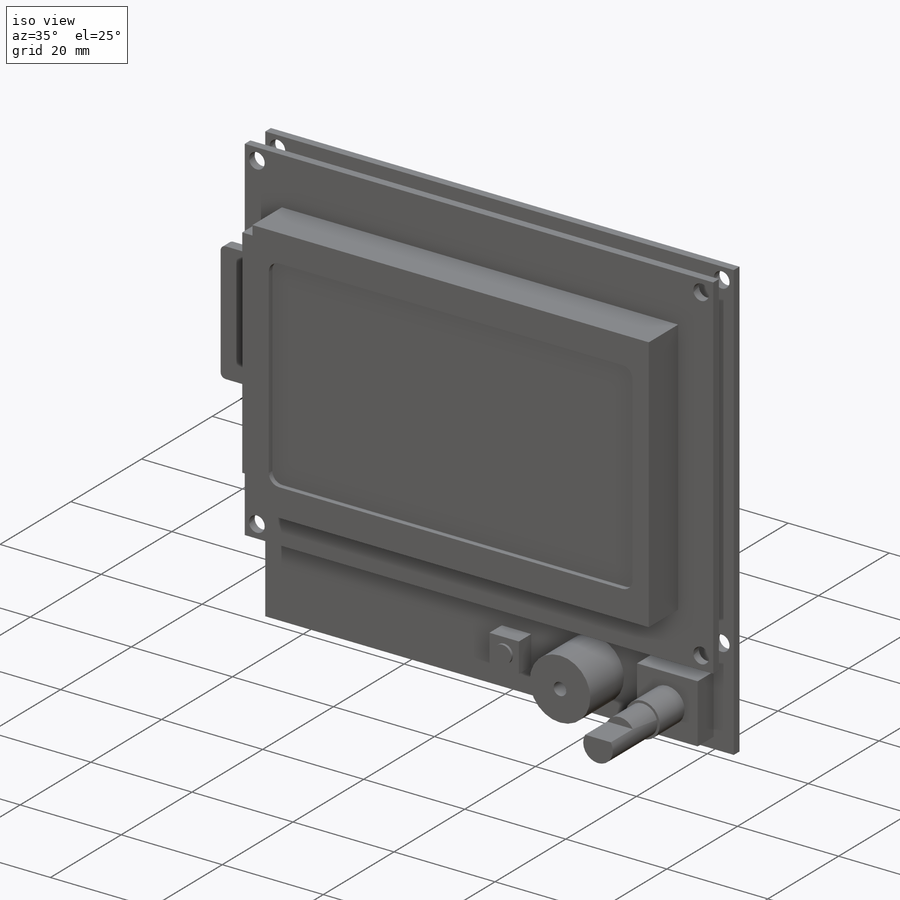
[diagram: iso view]
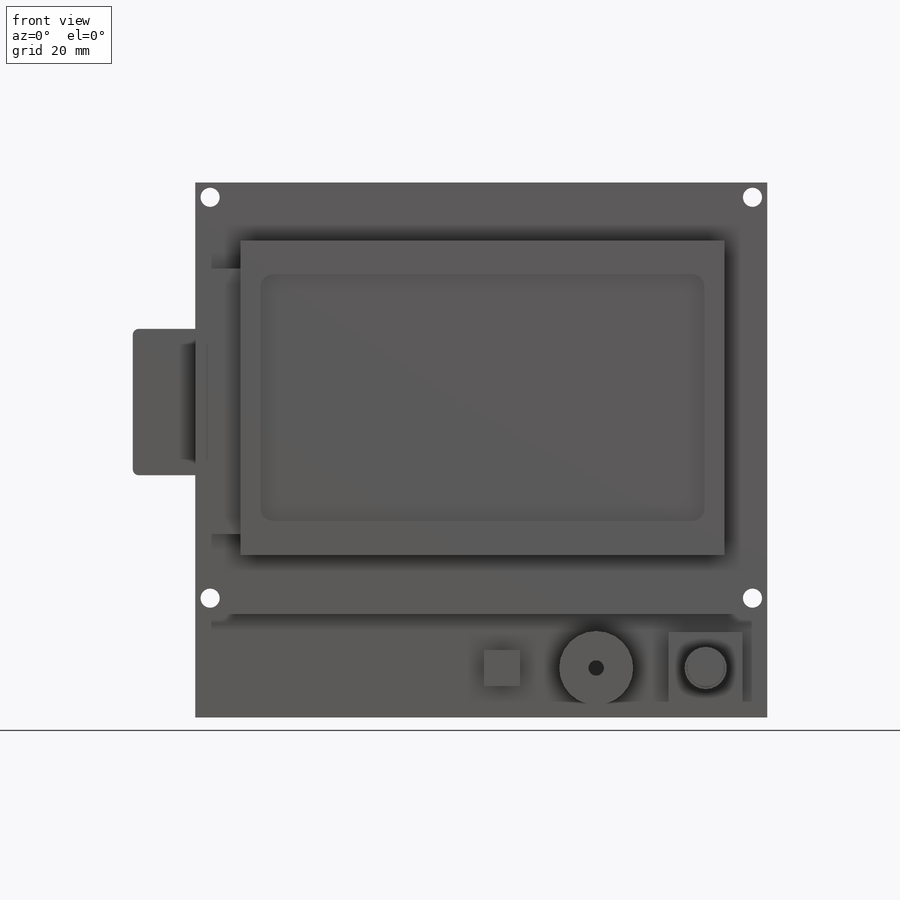
[diagram: front view]
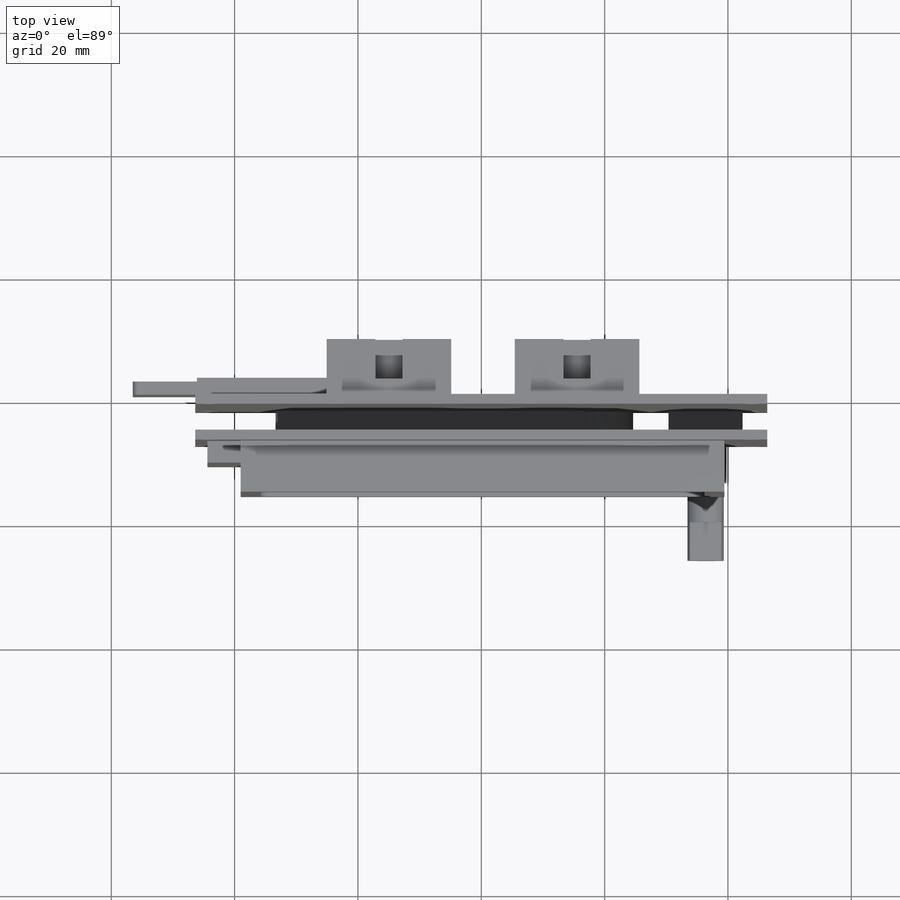
[diagram: top view]
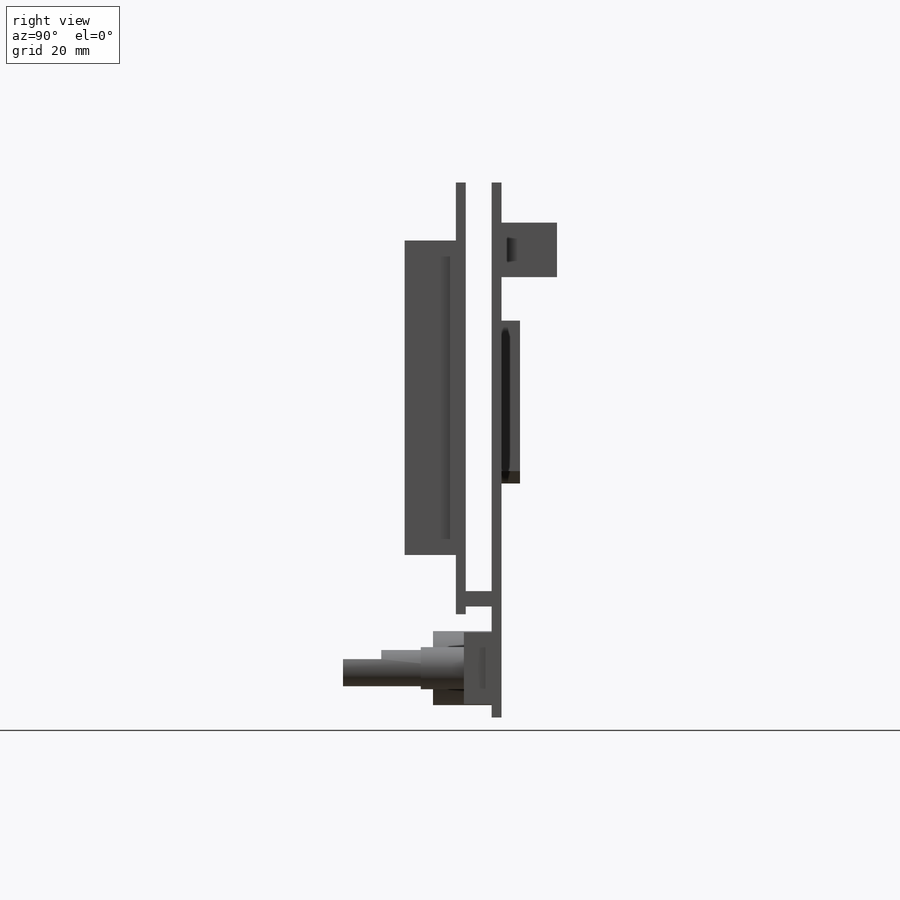
[diagram: right view]
SOLIDWORKS PART (.sldprt)
format: sldprt  version: not decoded by parser v0  size: 635,392 bytes
history: native  units: mm
features: sketch x19, extrude x16, cut_extrude x3, material x1, fillet x1 (+12 scaffold rows collapsed)
feature tree (52):
  scaffold x12  (default folders/planes/origin — collapsed)
  material  "Material <not specified>"
  sketch  "Sketch1"  dims[D3=3.1mm D1=86.75mm D2=92.75mm D4=2.4mm D5=2.4mm D6=2.4mm D7=65.0mm]
  extrude  "Boss-Extrude1 - First PCB"  Depth=1.6mm
  sketch  "Sketch2"  dims[D1=12.0mm D2=8.0mm D3=65.0mm]
  extrude  "Boss-Extrude2 - Speaker"  Depth=9.5mm
  sketch  "Sketch15"  dims[D1=2.5mm]
  cut_extrude  "Cut-Extrude1 - Speaker Hole"  Depth=5mm
  sketch  "Sketch3"  dims[D1=11.65mm D2=12.0mm D3=10.0mm]
  extrude  "Boss-Extrude3 - Rotary Switch"  Depth=4.5mm
  sketch  "Sketch4"  dims[c1.D1=5.83mm c1.D2=5.83mm c1.D3=7.0mm c1.D4=23.0mm c1.D5=41.0mm c1.D6=3.0mm c1.D7=5.0mm c2.D3=43.0mm]
  extrude  "Boss-Extrude4 - Reset Switch"  Depth=3.5mm
  sketch  "Sketch5"  dims[D1=3.5mm]
  extrude  "Boss-Extrude5 - Reset Button"  Depth=0.5mm
  sketch  "Sketch16"  dims[D1=6.83mm]
  extrude  "Boss-Extrude6 - Rotary Switch"  Depth=7mm
  sketch  "Sketch17"  dims[D1=5.87mm]
  extrude  "Boss-Extrude7 - Rotary Switch"  Depth=6.4mm
  sketch  "Sketch18"  dims[D1=4.4mm]
  extrude  "Boss-Extrude8 - Rotary Switch"  Depth=24.1mm
  sketch  "Sketch9"  dims[c1.D1=22.4mm c1.D2=26.4mm c1.D3=1.0mm c1.D4=25.0mm c1.D5=2.0mm c1.D6=5.0mm c1.D7=~3.978678mm c2.D7=45.0deg c2.D3=0.25mm c2.D4=18.25mm c2.D6=2.0mm c3.D6=45.0deg c3.D7=25.75mm]
  extrude  "Boss-Extrude9 - SD Card Slot"  Depth=3mm
  sketch  "Sketch19"  dims[D1=2.5mm D2=50.0mm D3=13.0mm D4=18.0mm]
  extrude  "Boss-Extrude10 - Connector"  Depth=4.2mm
  sketch  "Sketch11"  dims[D5=3.5mm D1=98.0mm D2=70.0mm D3=4.0mm D4=14.0mm D6=2.5mm D7=2.5mm]
  extrude  "Boss-Extrude11 - Upper PCB"  Depth=1.6mm
  sketch  "Sketch12"  dims[c1.D1=51.0mm c1.D2=78.45mm c1.D3=10.0mm c1.D4=7.4mm c2.D3=9.4mm c2.D4=7.35mm]
  extrude  "Boss-Extrude12 - LCD"  Depth=8.3mm
  sketch  "Sketch24"  dims[D1=5.4mm D2=43.0mm D3=4.6mm]
  extrude  "Boss-Extrude13 - LCD Bumpout"  Depth=3.5mm
  sketch  "Sketch13"  dims[c1.D6=0.5mm c1.D7=0.5mm c1.D8=2.0mm c1.D1=40.0mm c1.D2=68.95mm c1.D3=74.95mm c1.D4=1.5mm c1.D5=2.0mm c2.D2=72.0mm]
  cut_extrude  "Cut-Extrude2 - Screen Recess"  Depth=1mm
  sketch  "Sketch21"  dims[D1=20.2mm D2=10.3mm D3=8.85mm D4=20.75mm D5=6.5mm D6=1.0mm D7=1.0mm]
  extrude  "Boss-Extrude14 - Connectors"  Depth=9mm
  sketch  "Sketch22"  dims[D1=0.0mm D2=0.0mm]
  extrude  "Boss-Extrude15 - Connector Recess"  Depth=2.55mm
  sketch  "Sketch23"  dims[D1=4.4mm]
  cut_extrude  "Cut-Extrude3 - Connector Notch"  [1 undecoded]
  sketch  "Sketch20"  dims[D1=23.75mm D2=2.153mm D3=1.87mm D4=0.577mm]
  extrude  "Boss-Extrude16 - SD Card"  Depth=10.4mm
  fillet  "Fillet1 - SD Card"  Radius=1mm
decode coverage: 38 of 39 modeling features carry decoded parameters
note: ~ marks probable driven/reference dimensions
note: 1 parameter value undecoded
note: suppression state not decoded; provenance and decode notes live in map.json
